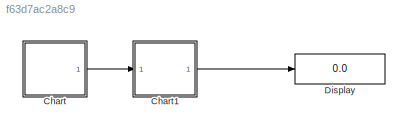
MODEL slx_f63d7ac2a8c9
KIND model
CONFIG AbsTol = auto
CONFIG EnableMultiTasking = off
CONFIG FixedStep = auto
CONFIG MaxStep = auto
CONFIG MinStep = auto
CONFIG RelTol = 1e-3
CONFIG SampleTimeConstraint = Unconstrained
CONFIG Solver = VariableStepAuto
CONFIG SolverName = VariableStepAuto
CONFIG StartTime = 0.0
CONFIG StopTime = 10.0
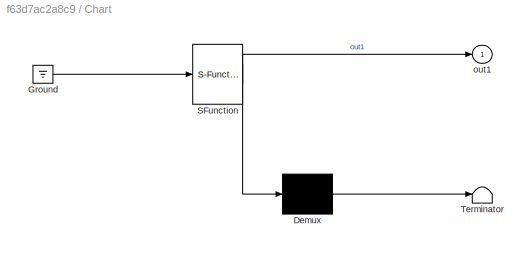
BLOCK [SubSystem] Chart
  ErrorFcn = Stateflow.Translate.translate
  PermitHierarchicalResolution = ExplicitOnly
  Ports = [0, 1]
  RequestExecContextInheritance = off
  SFBlockType = Chart
  TreatAsAtomicUnit = on
  Variant = off
BLOCK [Demux] Chart/ Demux 
  Outputs = 1
  Ports = [1, 1]
BLOCK [Ground] Chart/ Ground 
BLOCK [S-Function] Chart/ SFunction 
  EnableBusSupport = on
  FunctionName = sf_sfun
  PortCounts = [1 2]
  Ports = [1, 2]
  SFcnIsStateOwnerBlock = off
  SFunctionDeploymentMode = off
  Tag = Stateflow S-Function tcpipSf17a 3
BLOCK [Terminator] Chart/ Terminator 
BLOCK [Outport] Chart/out1
  IconDisplay = Port number
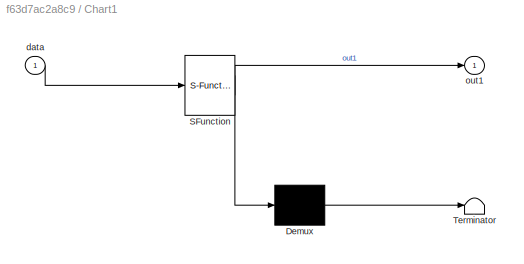
BLOCK [SubSystem] Chart1
  ErrorFcn = Stateflow.Translate.translate
  PermitHierarchicalResolution = ExplicitOnly
  Ports = [1, 1]
  RequestExecContextInheritance = off
  SFBlockType = Chart
  TreatAsAtomicUnit = on
  Variant = off
BLOCK [Demux] Chart1/ Demux 
  Outputs = 1
  Ports = [1, 1]
BLOCK [S-Function] Chart1/ SFunction 
  EnableBusSupport = on
  FunctionName = sf_sfun
  PortCounts = [1 2]
  Ports = [1, 2]
  SFcnIsStateOwnerBlock = off
  SFunctionDeploymentMode = off
  Tag = Stateflow S-Function tcpipSf17a 1
BLOCK [Terminator] Chart1/ Terminator 
BLOCK [Inport] Chart1/data
  IconDisplay = Port number
BLOCK [Outport] Chart1/out1
  IconDisplay = Port number
BLOCK [Display] Display
  Decimation = 1
  Ports = [1]
LINE Chart1:1 -> Display:1
LINE Chart:1 -> Chart1:1
CHART Chart1 states=2 transitions=1
  STATE_LABEL 'A\nen,du:\nout1 = tcpGet;'
  STATE_LABEL 'y = tcpGet'
  STATE_LABEL "SCRIPT:\nfunction y = tcpGet\npersistent obj\ny = 1;\ncoder.extrinsic('evalin');\ncoder.extrinsic('get');\nif isempty(obj)\n    obj = evalin('base','objWs');\nend\nbytesAvail=get(obj,'InputBufferSize');\ny = bytesAvail;\n"
CHART Chart states=2 transitions=1
  STATE_LABEL 'tcpInit'
  STATE_LABEL "SCRIPT:\nfunction tcpInit\ncoder.extrinsic('tcpip');\ncoder.extrinsic('assignin');\npersistent obj\nif isempty(obj)\n    obj=tcpip('rhost','InputBufferSize',780);\n    assignin('base','objWs',obj);\nend"
  STATE_LABEL 'A\nen,du:\ntcpInit;\nout1 = 0;'
